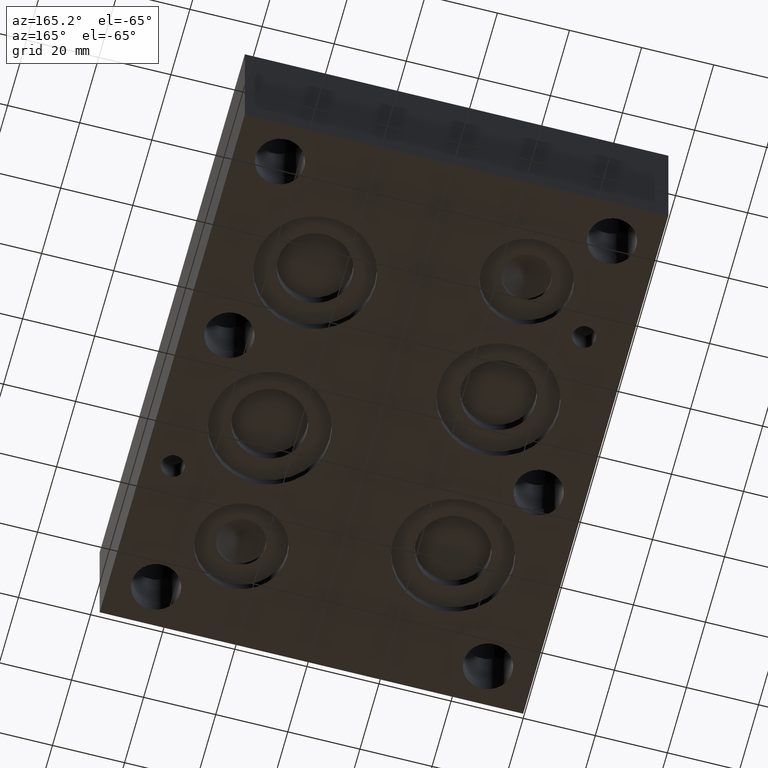
[diagram: clean part render]
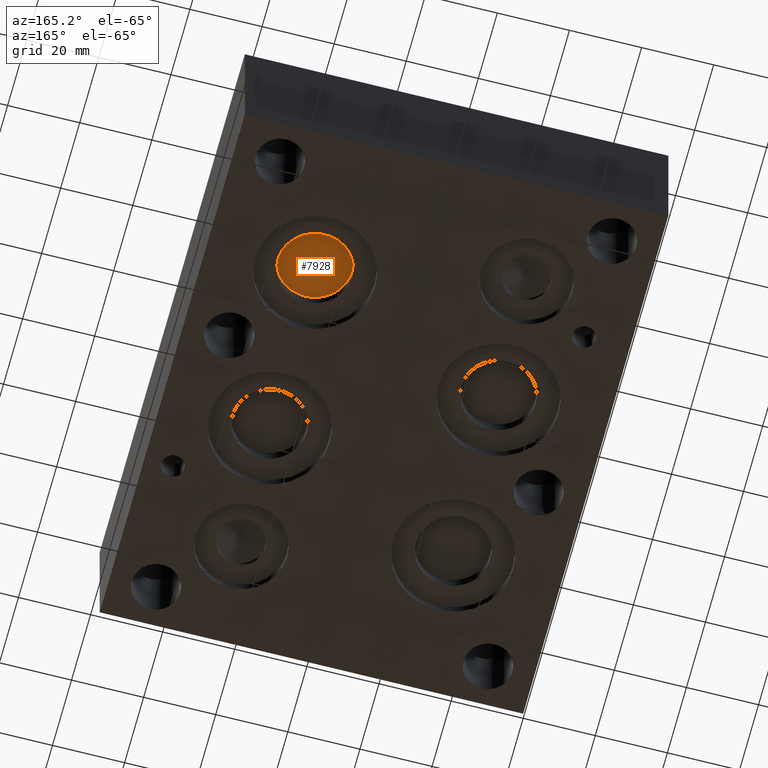
[diagram: same view with one face highlighted and labeled with its STEP entity id]
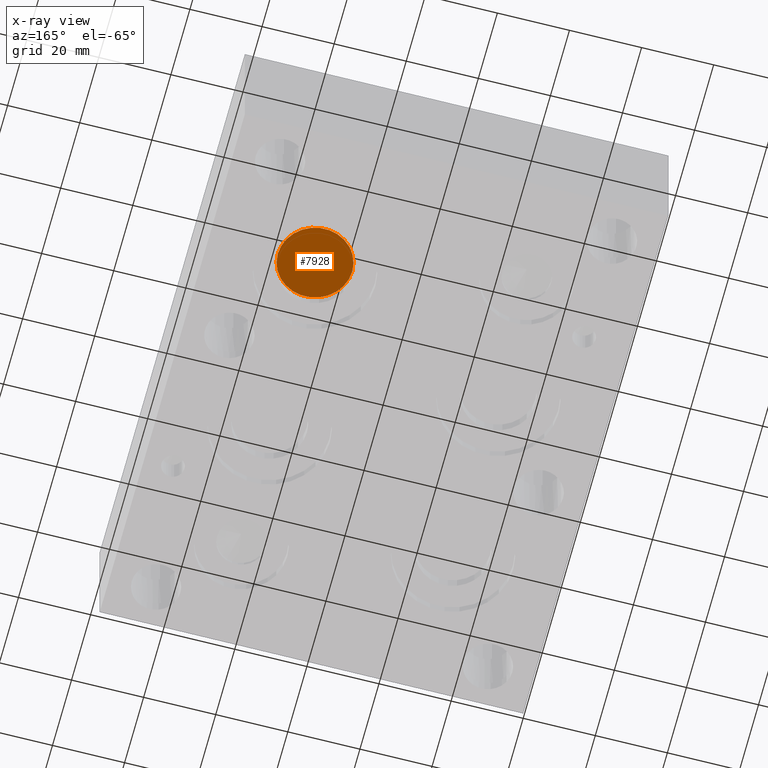
[diagram: x-ray of the same camera — body ghosted, the highlighted face saturated]
A machine part, auxiliary view. The second image highlights one B-rep face of the part: STEP entity #7928.
The next image is the same camera in x-ray: the body ghosted, the highlighted face saturated — about 0% of this face is hidden behind the body in this view.
In plain terms, the highlighted planar face has unit normal (0, 0, -1).
Its self-contained STEP definition (entity closure, byte-faithful):
#44=CIRCLE('',#8279,10.3251);
#899=FACE_OUTER_BOUND('',#1356,.T.);
#1356=EDGE_LOOP('',(#6672));
#3655=VERTEX_POINT('',#13243);
#4686=EDGE_CURVE('',#3655,#3655,#44,.T.);
#6672=ORIENTED_EDGE('',*,*,#4686,.T.);
#7243=PLANE('',#8280);
#7928=ADVANCED_FACE('',(#899),#7243,.T.);
#8279=AXIS2_PLACEMENT_3D('',#13245,#9664,#9665);
#8280=AXIS2_PLACEMENT_3D('',#13246,#9666,#9667);
#9664=DIRECTION('center_axis',(0.,0.,-1.));
#9665=DIRECTION('ref_axis',(1.,0.,0.));
#9666=DIRECTION('center_axis',(0.,0.,-1.));
#9667=DIRECTION('ref_axis',(1.,0.,0.));
#13243=CARTESIAN_POINT('',(76.9874,111.9251,6.35));
#13245=CARTESIAN_POINT('Origin',(87.3125,111.9251,6.35));
#13246=CARTESIAN_POINT('Origin',(87.3125,111.9251,6.35));